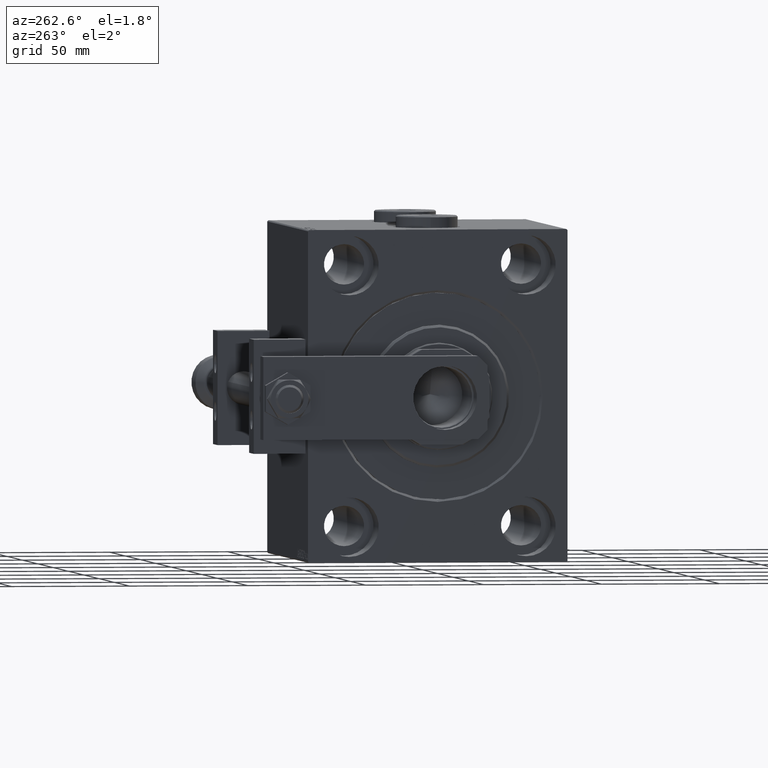
[diagram: clean part render]
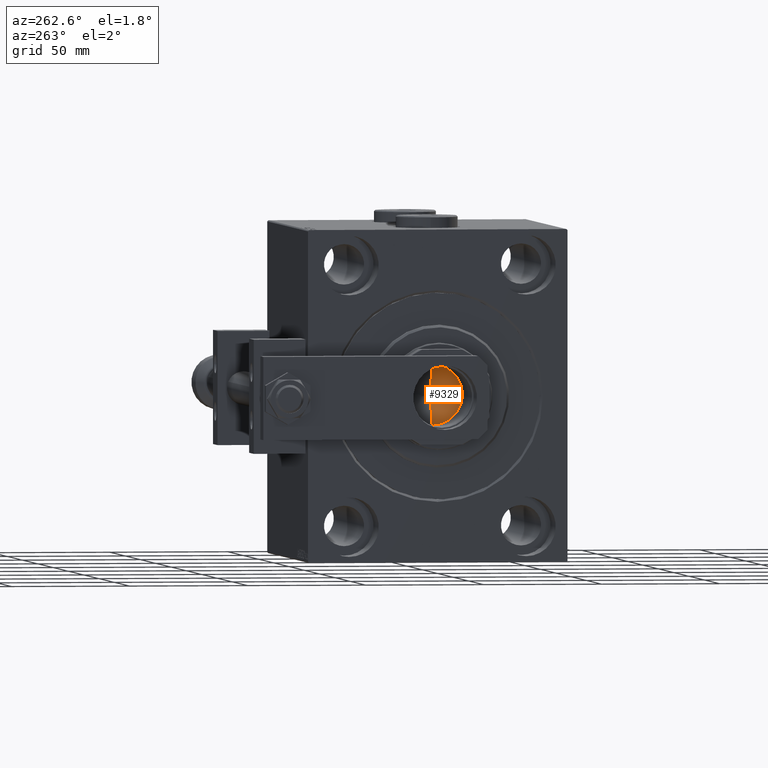
[diagram: same view with one face highlighted and labeled with its STEP entity id]
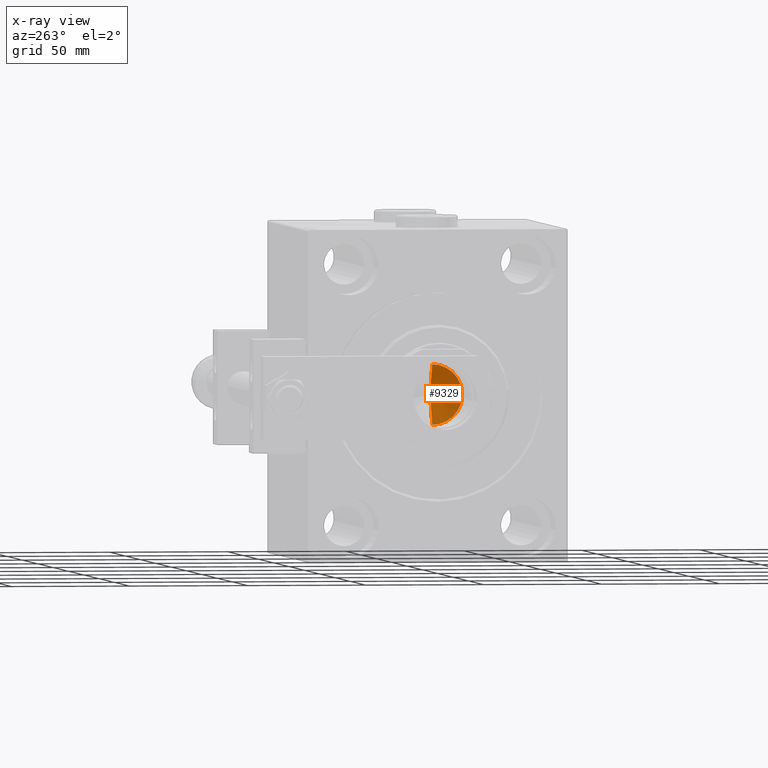
[diagram: x-ray of the same camera — body ghosted, the highlighted face saturated]
A machine part, auxiliary view. The second image highlights one B-rep face of the part: STEP entity #9329.
The next image is the same camera in x-ray: the body ghosted, the highlighted face saturated — about 1% of this face is hidden behind the body in this view.
In plain terms, the highlighted conical surface has half-angle 59 deg.
Its self-contained STEP definition (entity closure, byte-faithful):
#330 = LINE ( 'NONE', #40658, #5159 ) ;
#3869 = CARTESIAN_POINT ( 'NONE',  ( 0.000000000000000000, 0.000000000000000000, 94.00000000000000000 ) ) ;
#5159 = VECTOR ( 'NONE', #16496, 1000.000000000000000 ) ;
#5244 = EDGE_LOOP ( 'NONE', ( #19286, #47975, #8505 ) ) ;
#6027 = DIRECTION ( 'NONE',  ( -0.8571673007021118895, 1.049727191138618079E-16, 0.5150380749100549327 ) ) ;
#8265 = DIRECTION ( 'NONE',  ( 1.000000000000000000, 0.000000000000000000, 0.000000000000000000 ) ) ;
#8505 = ORIENTED_EDGE ( 'NONE', *, *, #15764, .T. ) ;
#9329 = ADVANCED_FACE ( 'NONE', ( #52400 ), #22057, .F. ) ;
#11740 = EDGE_CURVE ( 'NONE', #45901, #39583, #330, .T. ) ;
#13726 = LINE ( 'NONE', #21951, #45889 ) ;
#15396 = CIRCLE ( 'NONE', #36617, 12.74999999999999467 ) ;
#15764 = EDGE_CURVE ( 'NONE', #48123, #39583, #15396, .T. ) ;
#16496 = DIRECTION ( 'NONE',  ( 0.8571673007021118895, 0.000000000000000000, 0.5150380749100549327 ) ) ;
#19286 = ORIENTED_EDGE ( 'NONE', *, *, #11740, .F. ) ;
#21951 = CARTESIAN_POINT ( 'NONE',  ( -12.74999999999999467, 1.561424668912874519E-15, 94.00000000000000000 ) ) ;
#22057 = CONICAL_SURFACE ( 'NONE', #36447, 12.74999999999999467, 1.029744258676653645 ) ;
#28457 = CARTESIAN_POINT ( 'NONE',  ( 0.000000000000000000, 0.000000000000000000, 94.00000000000000000 ) ) ;
#29074 = CARTESIAN_POINT ( 'NONE',  ( -1.026246296720136938E-14, 0.000000000000000000, 86.33902710739860709 ) ) ;
#31245 = DIRECTION ( 'NONE',  ( -0.000000000000000000, -0.000000000000000000, 1.000000000000000000 ) ) ;
#35230 = DIRECTION ( 'NONE',  ( 1.000000000000000000, 0.000000000000000000, 0.000000000000000000 ) ) ;
#35554 = CARTESIAN_POINT ( 'NONE',  ( 12.74999999999999467, 0.000000000000000000, 94.00000000000000000 ) ) ;
#36447 = AXIS2_PLACEMENT_3D ( 'NONE', #3869, #31245, #35230 ) ;
#36617 = AXIS2_PLACEMENT_3D ( 'NONE', #28457, #44625, #8265 ) ;
#39583 = VERTEX_POINT ( 'NONE', #35554 ) ;
#40658 = CARTESIAN_POINT ( 'NONE',  ( 12.74999999999999467, 0.000000000000000000, 94.00000000000000000 ) ) ;
#42173 = CARTESIAN_POINT ( 'NONE',  ( -12.74999999999999467, 1.561424668912874519E-15, 94.00000000000000000 ) ) ;
#43375 = EDGE_CURVE ( 'NONE', #45901, #48123, #13726, .T. ) ;
#44625 = DIRECTION ( 'NONE',  ( -0.000000000000000000, -0.000000000000000000, 1.000000000000000000 ) ) ;
#45889 = VECTOR ( 'NONE', #6027, 1000.000000000000000 ) ;
#45901 = VERTEX_POINT ( 'NONE', #29074 ) ;
#47975 = ORIENTED_EDGE ( 'NONE', *, *, #43375, .T. ) ;
#48123 = VERTEX_POINT ( 'NONE', #42173 ) ;
#52400 = FACE_OUTER_BOUND ( 'NONE', #5244, .T. ) ;